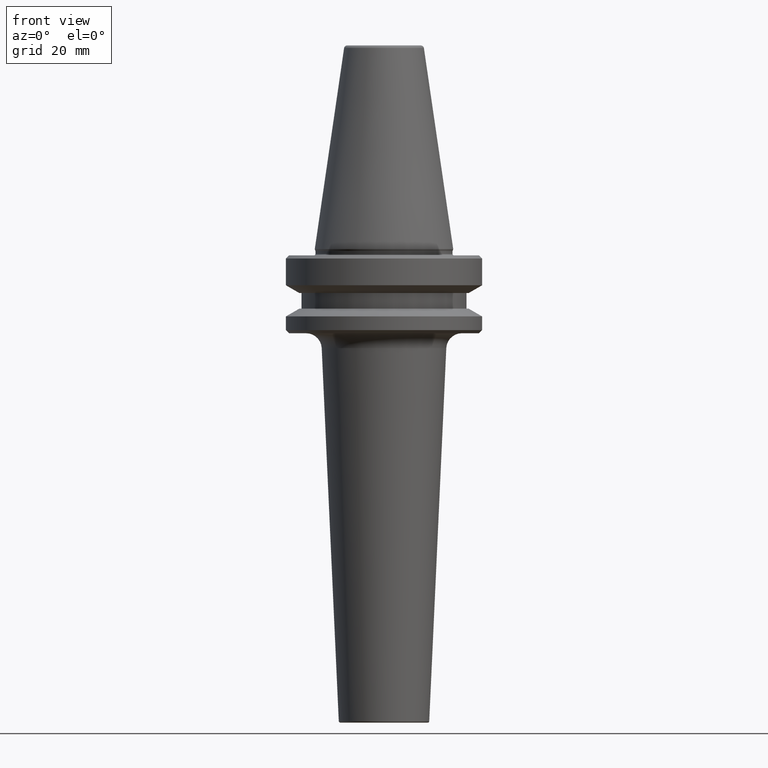
[diagram: clean part render]
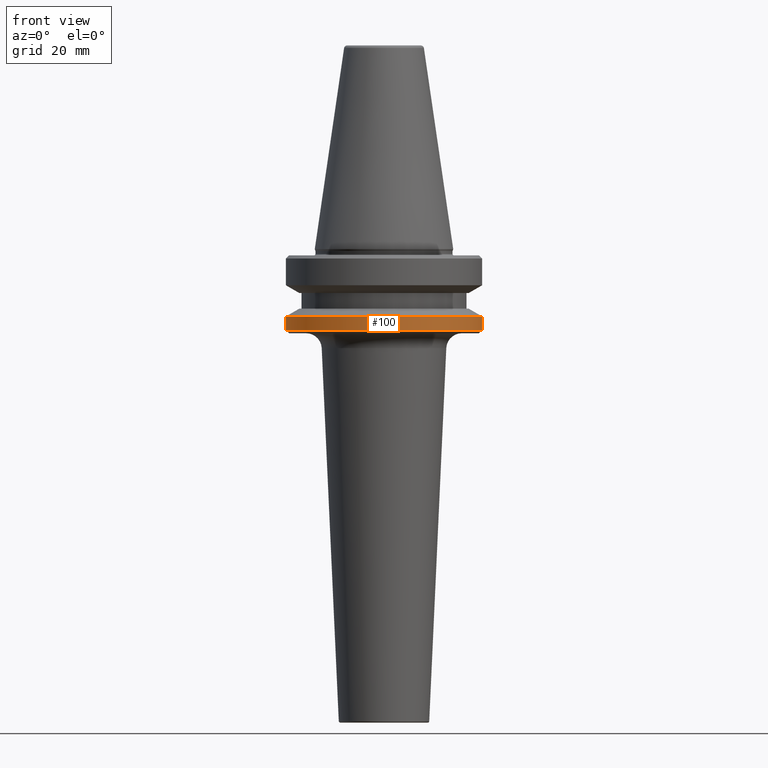
[diagram: same view with one face highlighted and labeled with its STEP entity id]
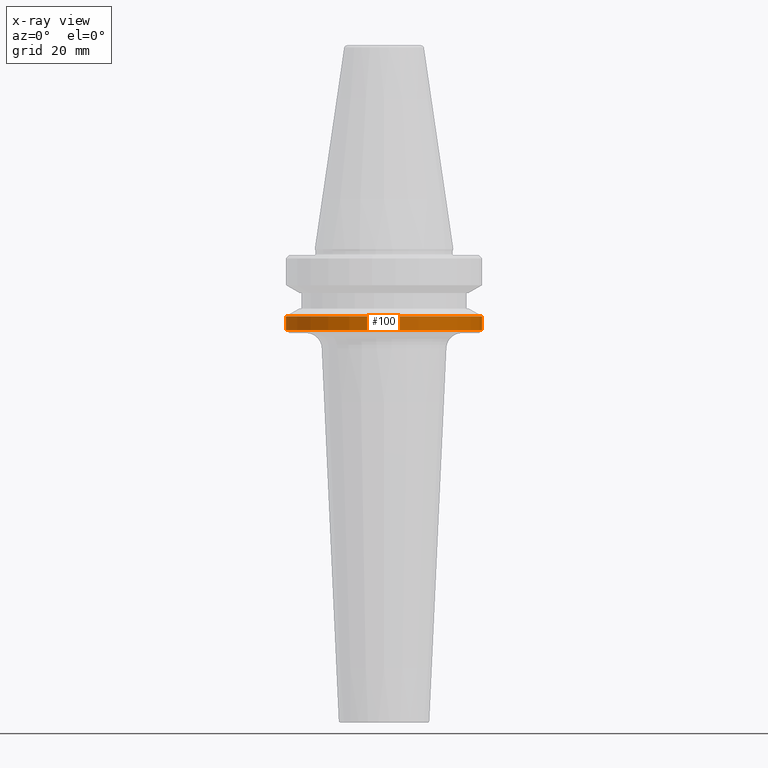
[diagram: x-ray of the same camera — body ghosted, the highlighted face saturated]
A machine part, front view. The second image highlights one B-rep face of the part: STEP entity #100.
The next image is the same camera in x-ray: the body ghosted, the highlighted face saturated — about 0% of this face is hidden behind the body in this view.
In plain terms, the highlighted cylindrical surface (partial cylindrical patch) has radius 31.5 mm, axis along (-0, -0, 1).
Its self-contained STEP definition (entity closure, byte-faithful):
#7 = DIRECTION ( 'NONE',  ( -0.0000000000000000000, -0.0000000000000000000, 1.000000000000000000 ) ) ;
#21 = LINE ( 'NONE', #756, #758 ) ;
#63 = AXIS2_PLACEMENT_3D ( 'NONE', #839, #360, #913 ) ;
#74 = DIRECTION ( 'NONE',  ( 1.000000000000000000, 0.0000000000000000000, 0.0000000000000000000 ) ) ;
#100 = ADVANCED_FACE ( 'NONE', ( #106 ), #971, .T. ) ;
#106 = FACE_OUTER_BOUND ( 'NONE', #1043, .T. ) ;
#108 = VERTEX_POINT ( 'NONE', #686 ) ;
#133 = EDGE_CURVE ( 'NONE', #924, #561, #578, .T. ) ;
#144 = CARTESIAN_POINT ( 'NONE',  ( -31.50000000000008500, 3.857637417314172900E-015, 6.357346922996331500 ) ) ;
#205 = DIRECTION ( 'NONE',  ( -0.0000000000000000000, -0.0000000000000000000, 1.000000000000000000 ) ) ;
#217 = AXIS2_PLACEMENT_3D ( 'NONE', #692, #205, #781 ) ;
#245 = VERTEX_POINT ( 'NONE', #443 ) ;
#265 = CIRCLE ( 'NONE', #217, 31.50000000000008500 ) ;
#312 = ORIENTED_EDGE ( 'NONE', *, *, #337, .F. ) ;
#337 = EDGE_CURVE ( 'NONE', #108, #245, #265, .T. ) ;
#360 = DIRECTION ( 'NONE',  ( -0.0000000000000000000, -0.0000000000000000000, 1.000000000000000000 ) ) ;
#367 = DIRECTION ( 'NONE',  ( -0.0000000000000000000, -0.0000000000000000000, 1.000000000000000000 ) ) ;
#410 = ORIENTED_EDGE ( 'NONE', *, *, #133, .T. ) ;
#443 = CARTESIAN_POINT ( 'NONE',  ( 31.50000000000008500, 0.0000000000000000000, -87.00014200631733300 ) ) ;
#455 = CARTESIAN_POINT ( 'NONE',  ( 0.0000000000000000000, 0.0000000000000000000, 6.357346922996331500 ) ) ;
#506 = DIRECTION ( 'NONE',  ( -0.0000000000000000000, -0.0000000000000000000, 1.000000000000000000 ) ) ;
#538 = ORIENTED_EDGE ( 'NONE', *, *, #930, .T. ) ;
#561 = VERTEX_POINT ( 'NONE', #597 ) ;
#578 = CIRCLE ( 'NONE', #63, 31.50000000000008500 ) ;
#597 = CARTESIAN_POINT ( 'NONE',  ( 31.50000000000008500, 0.0000000000000000000, -91.40000000000037500 ) ) ;
#607 = ORIENTED_EDGE ( 'NONE', *, *, #879, .F. ) ;
#686 = CARTESIAN_POINT ( 'NONE',  ( -31.50000000000008500, 3.857637417314172900E-015, -87.00014200631733300 ) ) ;
#692 = CARTESIAN_POINT ( 'NONE',  ( 0.0000000000000000000, 0.0000000000000000000, -87.00014200631733300 ) ) ;
#756 = CARTESIAN_POINT ( 'NONE',  ( 31.50000000000008500, 0.0000000000000000000, 6.357346922996331500 ) ) ;
#758 = VECTOR ( 'NONE', #7, 1000.000000000000000 ) ;
#781 = DIRECTION ( 'NONE',  ( 1.000000000000000000, 0.0000000000000000000, 0.0000000000000000000 ) ) ;
#832 = CARTESIAN_POINT ( 'NONE',  ( -31.50000000000008500, 3.857637417314172900E-015, -91.40000000000037500 ) ) ;
#839 = CARTESIAN_POINT ( 'NONE',  ( 0.0000000000000000000, 0.0000000000000000000, -91.40000000000037500 ) ) ;
#846 = VECTOR ( 'NONE', #506, 1000.000000000000000 ) ;
#879 = EDGE_CURVE ( 'NONE', #924, #108, #1051, .T. ) ;
#913 = DIRECTION ( 'NONE',  ( 1.000000000000000000, 0.0000000000000000000, 0.0000000000000000000 ) ) ;
#924 = VERTEX_POINT ( 'NONE', #832 ) ;
#930 = EDGE_CURVE ( 'NONE', #561, #245, #21, .T. ) ;
#971 = CYLINDRICAL_SURFACE ( 'NONE', #1014, 31.50000000000008500 ) ;
#1014 = AXIS2_PLACEMENT_3D ( 'NONE', #455, #367, #74 ) ;
#1043 = EDGE_LOOP ( 'NONE', ( #607, #410, #538, #312 ) ) ;
#1051 = LINE ( 'NONE', #144, #846 ) ;